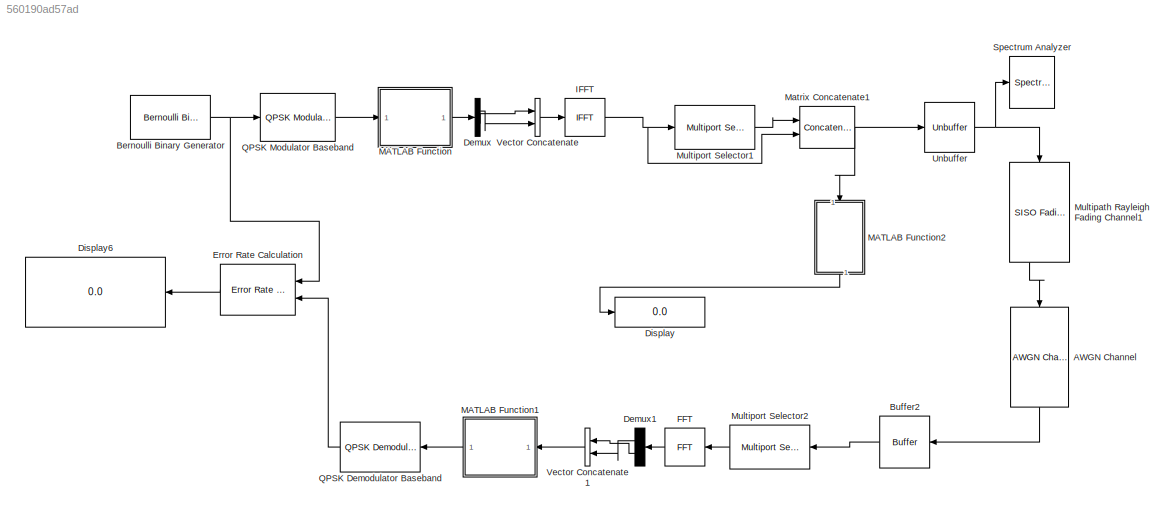
MODEL slx_560190ad57ad
KIND model
CONFIG AbsTol = auto
CONFIG EnableMultiTasking = off
CONFIG FixedStep = auto
CONFIG MaxStep = auto
CONFIG MinStep = auto
CONFIG RelTol = 1e-3
CONFIG SampleTimeConstraint = Unconstrained
CONFIG Solver = FixedStepDiscrete
CONFIG SolverName = FixedStepDiscrete
CONFIG StartTime = 0.0
CONFIG StopTime = 1
WORKSPACE source: MAT-file member
WORKSPACE bande_passante = 20000000
BLOCK [Reference] AWGN Channel  REF=commchan3/AWGN
Channel
  Ports = [1, 1]
  SourceBlock = commchan3/AWGN\nChannel
  SourceProductBaseCode = CM
  SourceProductName = Communications System Toolbox
  SourceType = AWGN Channel
  UserDataPersistent = on
BLOCK [Reference] Bernoulli Binary Generator  REF=commrandsrc3/Bernoulli Binary
Generator
  Ports = [0, 1]
  SourceBlock = commrandsrc3/Bernoulli Binary\nGenerator
  SourceProductBaseCode = CM
  SourceProductName = Communications System Toolbox
  SourceType = Bernoulli Binary Generator
BLOCK [Buffer] Buffer2
  N = nbr_total_canaux+size_prefixe_cyclique
  OutputFrames = off
BLOCK [Demux] Demux
  DisplayOption = bar
  Outputs = 2
  Ports = [1, 2]
BLOCK [Demux] Demux1
  DisplayOption = bar
  Outputs = 2
  Ports = [1, 2]
BLOCK [Display] Display
  Decimation = 1
  Ports = [1]
BLOCK [Display] Display6
  Decimation = 1
  Ports = [1]
BLOCK [Reference] Error Rate Calculation  REF=commsink2/Error Rate
Calculation
  Ports = [2, 1]
  SourceBlock = commsink2/Error Rate\nCalculation
  SourceProductBaseCode = CM
  SourceProductName = Communications System Toolbox
  SourceType = Error Rate Calculation
BLOCK [Reference] FFT  REF=dspxfrm3/FFT
  Ports = [1, 1]
  SourceBlock = dspxfrm3/FFT
  SourceProductBaseCode = DS
  SourceProductName = DSP System Toolbox
  SourceType = FFT
BLOCK [Reference] IFFT  REF=dspxfrm3/IFFT
  Ports = [1, 1]
  SourceBlock = dspxfrm3/IFFT
  SourceProductBaseCode = DS
  SourceProductName = DSP System Toolbox
  SourceType = IFFT
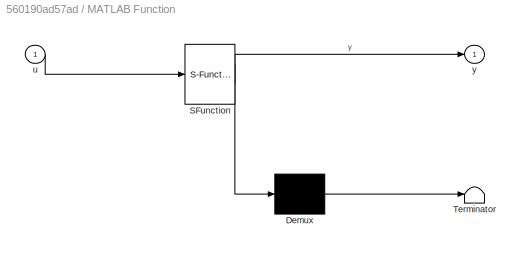
BLOCK [SubSystem] MATLAB Function
  ErrorFcn = Stateflow.Translate.translate
  PermitHierarchicalResolution = ExplicitOnly
  Ports = [1, 1]
  RequestExecContextInheritance = off
  SFBlockType = MATLAB Function
  TreatAsAtomicUnit = on
  Variant = off
BLOCK [Demux] MATLAB Function/ Demux 
  Outputs = 1
  Ports = [1, 1]
BLOCK [S-Function] MATLAB Function/ SFunction 
  EnableBusSupport = on
  FunctionName = sf_sfun
  Parameters = interval_pilote,nbr_total_canaux,nbr_zero
  PortCounts = [1 2]
  Ports = [1, 2]
  SFcnIsStateOwnerBlock = off
  SFunctionDeploymentMode = off
  Tag = Stateflow S-Function interpolation_cubique 2
BLOCK [Terminator] MATLAB Function/ Terminator 
BLOCK [Inport] MATLAB Function/u
  IconDisplay = Port number
BLOCK [Outport] MATLAB Function/y
  IconDisplay = Port number
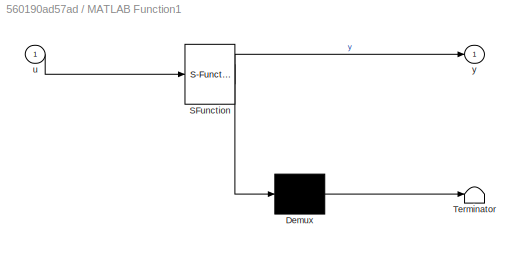
BLOCK [SubSystem] MATLAB Function1
  ErrorFcn = Stateflow.Translate.translate
  PermitHierarchicalResolution = ExplicitOnly
  Ports = [1, 1]
  RequestExecContextInheritance = off
  SFBlockType = MATLAB Function
  TreatAsAtomicUnit = on
  Variant = off
BLOCK [Demux] MATLAB Function1/ Demux 
  Outputs = 1
  Ports = [1, 1]
BLOCK [S-Function] MATLAB Function1/ SFunction 
  EnableBusSupport = on
  FunctionName = sf_sfun
  Parameters = interval_pilote,nbr_pilote,nbr_sous_porteuse,nbr_total_canaux,nbr_zero
  PortCounts = [1 2]
  Ports = [1, 2]
  SFcnIsStateOwnerBlock = off
  SFunctionDeploymentMode = off
  Tag = Stateflow S-Function interpolation_cubique 1
BLOCK [Terminator] MATLAB Function1/ Terminator 
BLOCK [Inport] MATLAB Function1/u
  IconDisplay = Port number
BLOCK [Outport] MATLAB Function1/y
  IconDisplay = Port number
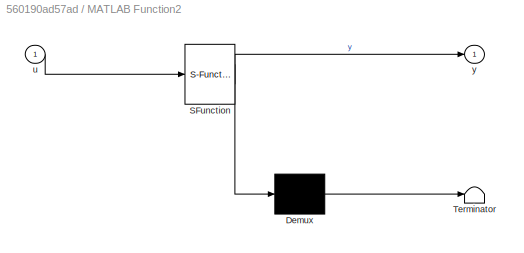
BLOCK [SubSystem] MATLAB Function2
  ErrorFcn = Stateflow.Translate.translate
  PermitHierarchicalResolution = ExplicitOnly
  Ports = [1, 1]
  RequestExecContextInheritance = off
  SFBlockType = MATLAB Function
  TreatAsAtomicUnit = on
  Variant = off
BLOCK [Demux] MATLAB Function2/ Demux 
  Outputs = 1
  Ports = [1, 1]
BLOCK [S-Function] MATLAB Function2/ SFunction 
  EnableBusSupport = on
  FunctionName = sf_sfun
  PortCounts = [1 2]
  Ports = [1, 2]
  SFcnIsStateOwnerBlock = off
  SFunctionDeploymentMode = off
  Tag = Stateflow S-Function interpolation_cubique 3
BLOCK [Terminator] MATLAB Function2/ Terminator 
BLOCK [Inport] MATLAB Function2/u
  IconDisplay = Port number
BLOCK [Outport] MATLAB Function2/y
  IconDisplay = Port number
BLOCK [Concatenate] Matrix Concatenate1
  ConcatenateDimension = 2
  Ports = [2, 1]
BLOCK [Reference] Multipath Rayleigh Fading Channel1  REF=commchan3/SISO Fading Channel
  Ports = [1, 2]
  SourceBlock = commchan3/SISO Fading Channel
  SourceProductBaseCode = CM
  SourceProductName = Communications System Toolbox
  SourceType = SISO Fading Channel
BLOCK [Reference] Multiport Selector1  REF=dspindex/Multiport
Selector
  Ports = [1, 1]
  SourceBlock = dspindex/Multiport\nSelector
  SourceProductBaseCode = DS
  SourceProductName = DSP System Toolbox
  SourceType = Multiport Selector
BLOCK [Reference] Multiport Selector2  REF=dspindex/Multiport
Selector
  Ports = [1, 1]
  SourceBlock = dspindex/Multiport\nSelector
  SourceProductBaseCode = DS
  SourceProductName = DSP System Toolbox
  SourceType = Multiport Selector
BLOCK [Reference] QPSK Demodulator Baseband  REF=commdigbbndpm3/QPSK
Demodulator
Baseband
  Ports = [1, 1]
  SourceBlock = commdigbbndpm3/QPSK\nDemodulator\nBaseband
  SourceProductBaseCode = CM
  SourceProductName = Communications System Toolbox
  SourceType = QPSK Demodulator Baseband
BLOCK [Reference] QPSK Modulator Baseband  REF=commdigbbndpm3/QPSK
Modulator
Baseband
  Ports = [1, 1]
  SourceBlock = commdigbbndpm3/QPSK\nModulator\nBaseband
  SourceProductBaseCode = CM
  SourceProductName = Communications System Toolbox
  SourceType = QPSK Modulator Baseband
BLOCK [SpectrumAnalyzer] Spectrum Analyzer
  NumInputPorts = 1
  Ports = [1]
  ScopeSpecificationString = spbscopes.SpectrumAnalyzerBlockCfg('CurrentConfiguration', extmgr.ConfigurationSet(extmgr.Configuration('Core','General UI',true),extmgr.Configuration('Core','Source UI',true),extmgr.Configuration('Sources','WiredSimulink',true),extmgr.Configuration('Visuals','Spectrum',true,'AxesProperties',struct('Color',{[0 0 0],[0 0 0]},'XColor',{[0.686274509803922 0.686274509803922 0.686274509803922],[0.68627...<+1694ch>
BLOCK [Unbuffer] Unbuffer
  Ports = [1, 1]
BLOCK [Concatenate] Vector Concatenate
  Ports = [2, 1]
BLOCK [Concatenate] Vector Concatenate1
  Ports = [2, 1]
LINE AWGN Channel:1 -> Buffer2:1
NET Bernoulli Binary Generator:1 -> Error Rate Calculation:1, QPSK Modulator Baseband:1
LINE Buffer2:1 -> Multiport Selector2:1
LINE Demux1:1 -> Vector Concatenate1:2
LINE Demux1:2 -> Vector Concatenate1:1
LINE Demux:1 -> Vector Concatenate:2
LINE Demux:2 -> Vector Concatenate:1
LINE Error Rate Calculation:1 -> Display6:1
LINE FFT:1 -> Demux1:1
NET IFFT:1 -> Matrix Concatenate1:2, Multiport Selector1:1
LINE MATLAB Function1:1 -> QPSK Demodulator Baseband:1
LINE MATLAB Function2:1 -> Display:1
LINE MATLAB Function:1 -> Demux:1
NET Matrix Concatenate1:1 -> MATLAB Function2:1, Unbuffer:1
LINE Multipath Rayleigh Fading Channel1:1 -> AWGN Channel:1
LINE Multiport Selector1:1 -> Matrix Concatenate1:1
LINE Multiport Selector2:1 -> FFT:1
LINE QPSK Demodulator Baseband:1 -> Error Rate Calculation:2
LINE QPSK Modulator Baseband:1 -> MATLAB Function:1
NET Unbuffer:1 -> Multipath Rayleigh Fading Channel1:1, Spectrum Analyzer:1
LINE Vector Concatenate1:1 -> MATLAB Function1:1
LINE Vector Concatenate:1 -> IFFT:1
note: NET lines group one-source signal fan-out (src -> all destinations, sorted); 1:1 wires keep LINE
CHART MATLAB Function1 states=1 transitions=1
  STATE_LABEL 'eML_blk_kernel()'
  STATE_LABEL 'SCRIPT:\nfunction y = fcn(u, nbr_zero, nbr_total_canaux, interval_pilote, nbr_sous_porteuse, nbr_pilote)\n\n\nv3 = zeros(1,nbr_sous_porteuse);\nv4 = zeros(1,nbr_sous_porteuse);\ndata_sous_porteuse = complex(v3,v4);\n\nv1 = zeros(1,nbr_pilote);\nv2 = zeros(1,nbr_pilote);\nvecteur_pilote = complex(v1,v2);\n\nl = interval_pilote;\nl2 =fix(interval_pilote/2);\ncompteur_sous_porteuse = 1;\ncompteur_pilote = 1;\n\n\nfor ...<+691ch>'
CHART MATLAB Function states=1 transitions=1
  STATE_LABEL 'eML_blk_kernel()'
  STATE_LABEL 'SCRIPT:\nfunction y = fcn(u, nbr_total_canaux, nbr_zero, interval_pilote)\ni = interval_pilote; %Sélection du nombre de pilote \nn = nbr_total_canaux; %Nombre de sous-canaux\nv1 = zeros(n,1);\nv2 = zeros(n,1);\nv = complex(v1,v2);\nl = interval_pilote;\nl2 = fix(interval_pilote/2);\nu_compteur = 1;\nl_compteur = 0;\n\nfor k=fix(nbr_zero/2)+1:1:nbr_total_canaux-(fix(nbr_zero/2)+rem(nbr_zero,2))\n    if l2 == 0\n...<+201ch>'
CHART MATLAB Function2 states=1 transitions=1
  STATE_LABEL 'eML_blk_kernel()'
  STATE_LABEL 'SCRIPT:\nfunction y = fcn(u)\n\nL = length(u);\nsomme = 0;\nfor k=1:1:L\n    somme = somme + abs(u(k))^2;\nend\n\nsomme = somme/L; \n        \ndisp(somme);\n\ny = somme;\n'
